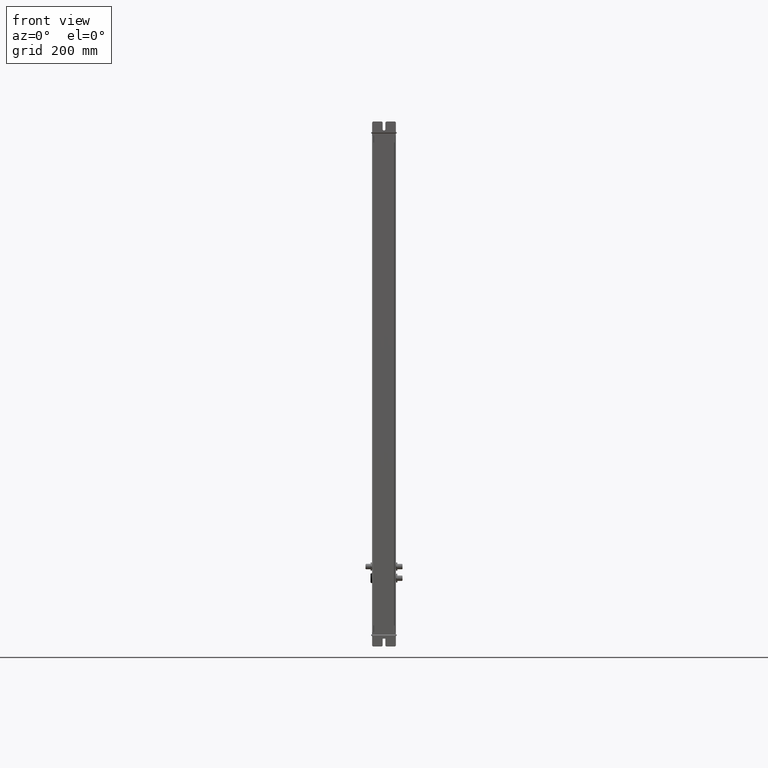
[diagram: clean part render]
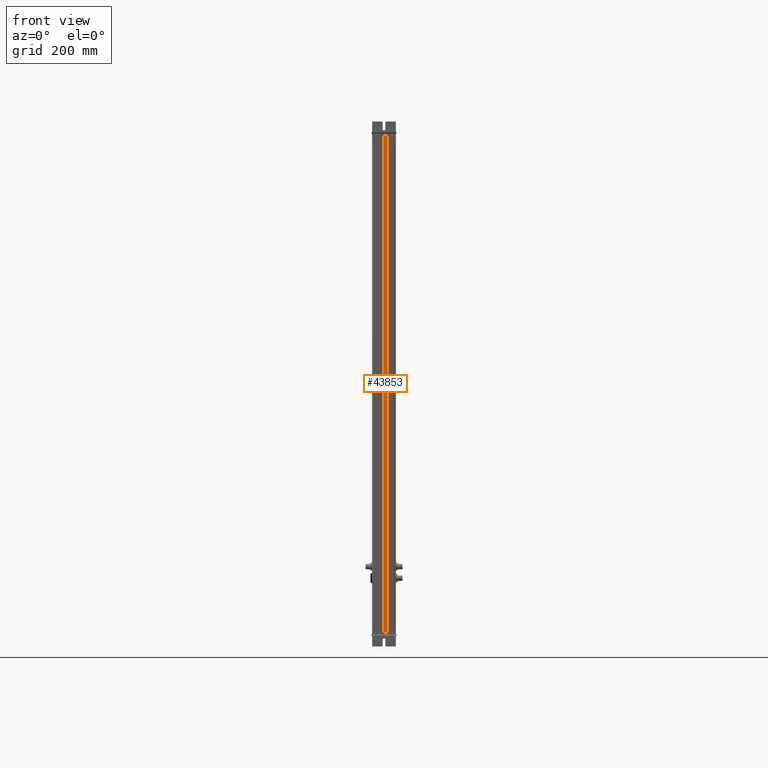
[diagram: same view with one face highlighted and labeled with its STEP entity id]
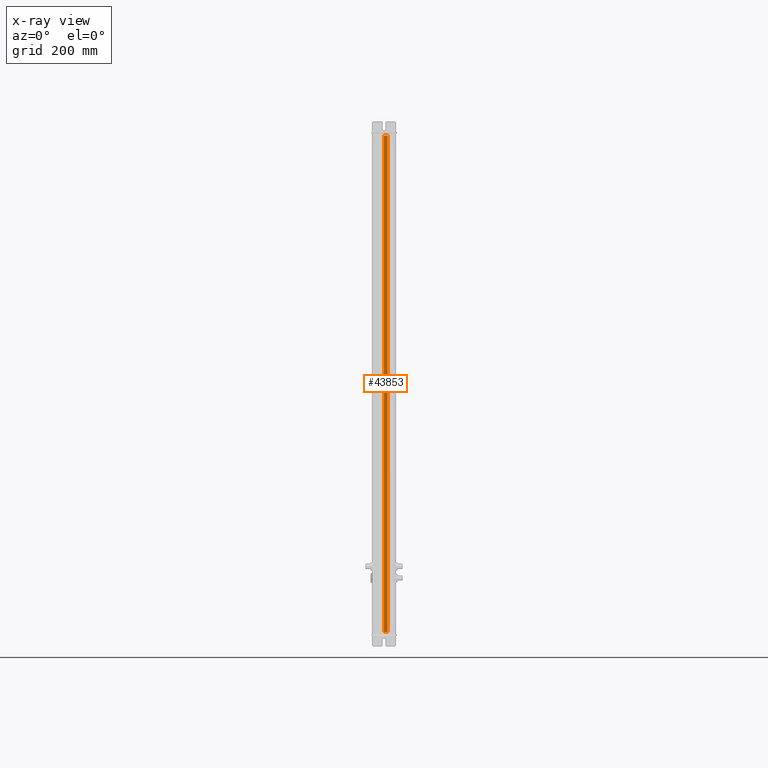
[diagram: x-ray of the same camera — body ghosted, the highlighted face saturated]
A machine part, front view. The second image highlights one B-rep face of the part: STEP entity #43853.
The next image is the same camera in x-ray: the body ghosted, the highlighted face saturated — about 0% of this face is hidden behind the body in this view.
In plain terms, the highlighted planar face has unit normal (-0.0001, -1, 0).
Its self-contained STEP definition (entity closure, byte-faithful):
#43801=CARTESIAN_POINT('Vertex',(639.695716303,120.261611208,0.)) ;
#43804=CARTESIAN_POINT('Line Origine',(639.695716303,120.261611208,556.)) ;
#43808=CARTESIAN_POINT('Vertex',(639.695716303,120.261611208,1112.)) ;
#43823=CARTESIAN_POINT('Axis2P3D Location',(639.695716303,120.261611208,0.)) ;
#43828=CARTESIAN_POINT('Line Origine',(643.683907597,120.261195664,0.)) ;
#43832=CARTESIAN_POINT('Vertex',(647.67209889,120.26078012,0.)) ;
#43835=CARTESIAN_POINT('Line Origine',(647.67209889,120.26078012,556.)) ;
#43839=CARTESIAN_POINT('Vertex',(647.67209889,120.26078012,1112.)) ;
#43842=CARTESIAN_POINT('Line Origine',(643.683907597,120.261195664,1112.)) ;
#43805=DIRECTION('Vector Direction',(0.,0.,1.)) ;
#43824=DIRECTION('Axis2P3D Direction',(-0.000104193603756,-0.999999994572,0.)) ;
#43825=DIRECTION('Axis2P3D XDirection',(0.999999994572,-0.000104193603756,0.)) ;
#43829=DIRECTION('Vector Direction',(0.999999994572,-0.000104193603756,0.)) ;
#43836=DIRECTION('Vector Direction',(0.,0.,1.)) ;
#43843=DIRECTION('Vector Direction',(0.999999994572,-0.000104193603756,0.)) ;
#43826=AXIS2_PLACEMENT_3D('Plane Axis2P3D',#43823,#43824,#43825) ;
#43848=ORIENTED_EDGE('',*,*,#43810,.F.) ;
#43849=ORIENTED_EDGE('',*,*,#43834,.T.) ;
#43850=ORIENTED_EDGE('',*,*,#43841,.T.) ;
#43851=ORIENTED_EDGE('',*,*,#43846,.F.) ;
#43806=VECTOR('Line Direction',#43805,1.) ;
#43830=VECTOR('Line Direction',#43829,1.) ;
#43837=VECTOR('Line Direction',#43836,1.) ;
#43844=VECTOR('Line Direction',#43843,1.) ;
#43853=ADVANCED_FACE('Body.2',(#43852),#43827,.T.) ;
#43810=EDGE_CURVE('',#43802,#43809,#43807,.T.) ;
#43834=EDGE_CURVE('',#43802,#43833,#43831,.T.) ;
#43841=EDGE_CURVE('',#43833,#43840,#43838,.T.) ;
#43846=EDGE_CURVE('',#43809,#43840,#43845,.T.) ;
#43847=EDGE_LOOP('',(#43848,#43849,#43850,#43851)) ;
#43852=FACE_OUTER_BOUND('',#43847,.T.) ;
#43807=LINE('Line',#43804,#43806) ;
#43831=LINE('Line',#43828,#43830) ;
#43838=LINE('Line',#43835,#43837) ;
#43845=LINE('Line',#43842,#43844) ;
#43827=PLANE('Plane',#43826) ;
#43802=VERTEX_POINT('',#43801) ;
#43809=VERTEX_POINT('',#43808) ;
#43833=VERTEX_POINT('',#43832) ;
#43840=VERTEX_POINT('',#43839) ;